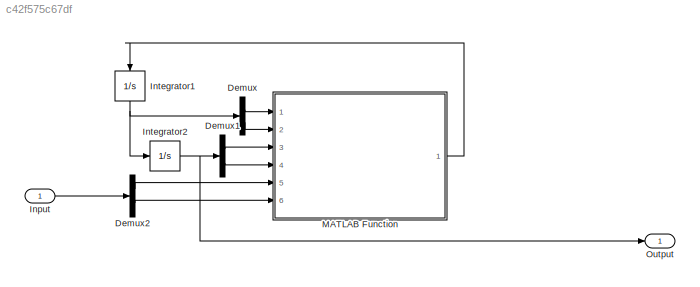
MODEL slx_c42f575c67df
KIND model
CONFIG AbsTol = auto
CONFIG EnableMultiTasking = off
CONFIG FixedStep = auto
CONFIG MaxStep = auto
CONFIG MinStep = auto
CONFIG RelTol = 1e-3
CONFIG SampleTimeConstraint = Unconstrained
CONFIG Solver = VariableStepAuto
CONFIG SolverName = VariableStepAuto
CONFIG StartTime = 0.0
CONFIG StopTime = 10.0
BLOCK [Demux] Demux
  DisplayOption = bar
  Outputs = 2
  Ports = [1, 2]
BLOCK [Demux] Demux1
  DisplayOption = bar
  Outputs = 2
  Ports = [1, 2]
BLOCK [Demux] Demux2
  DisplayOption = bar
  Outputs = 2
  Ports = [1, 2]
BLOCK [Inport] Input
  IconDisplay = Port number
BLOCK [Integrator] Integrator1
  InitialCondition = [0, 0]
  Ports = [1, 1]
BLOCK [Integrator] Integrator2
  InitialCondition = [pi/2, -pi/2]
  Ports = [1, 1]
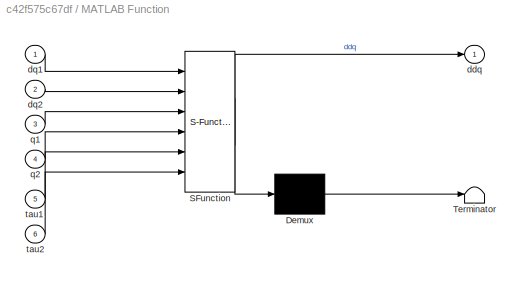
BLOCK [SubSystem] MATLAB Function
  ErrorFcn = Stateflow.Translate.translate
  PermitHierarchicalResolution = ExplicitOnly
  Ports = [6, 1]
  RequestExecContextInheritance = off
  SFBlockType = MATLAB Function
  TreatAsAtomicUnit = on
BLOCK [Demux] MATLAB Function/ Demux 
  Outputs = 1
  Ports = [1, 1]
BLOCK [S-Function] MATLAB Function/ SFunction 
  EnableBusSupport = on
  FunctionName = sf_sfun
  PortCounts = [6 2]
  Ports = [6, 2]
  SFcnIsStateOwnerBlock = off
  SFunctionDeploymentMode = off
  Tag = Stateflow S-Function 2
BLOCK [Terminator] MATLAB Function/ Terminator 
BLOCK [Outport] MATLAB Function/ddq
  IconDisplay = Port number
BLOCK [Inport] MATLAB Function/dq1
  IconDisplay = Port number
BLOCK [Inport] MATLAB Function/dq2
  IconDisplay = Port number
  Port = 2
BLOCK [Inport] MATLAB Function/q1
  IconDisplay = Port number
  Port = 3
BLOCK [Inport] MATLAB Function/q2
  IconDisplay = Port number
  Port = 4
BLOCK [Inport] MATLAB Function/tau1
  IconDisplay = Port number
  Port = 5
BLOCK [Inport] MATLAB Function/tau2
  IconDisplay = Port number
  Port = 6
BLOCK [Outport] Output
  IconDisplay = Port number
LINE Demux1:1 -> MATLAB Function:3
LINE Demux1:2 -> MATLAB Function:4
LINE Demux2:1 -> MATLAB Function:5
LINE Demux2:2 -> MATLAB Function:6
LINE Demux:1 -> MATLAB Function:1
LINE Demux:2 -> MATLAB Function:2
LINE Input:1 -> Demux2:1
NET Integrator1:1 -> Demux:1, Integrator2:1
NET Integrator2:1 -> Demux1:1, Output:1
LINE MATLAB Function:1 -> Integrator1:1
note: NET lines group one-source signal fan-out (src -> all destinations, sorted); 1:1 wires keep LINE
CHART MATLAB Function states=1 transitions=1
  STATE_LABEL 'eML_blk_kernel()'
  STATE_LABEL 'SCRIPT:\nfunction ddq = pendulum_dyn(dq1,dq2,q1,q2,tau1,tau2)\nt2 = cos(q1);\nt3 = cos(q2);\nt4 = sin(q2);\nt5 = q1+q2;\nt6 = dq1.^2;\nt10 = -tau2;\nt7 = t3+1.0;\nt8 = t3.^2;\nt9 = cos(t5);\nt11 = t2.*2.0e+1;\nt12 = t4.*t6;\nt13 = -t11;\nt14 = t9.*1.0e+1;\nt15 = t8-2.0;\nt16 = -t14;\nt17 = 1.0./t15;\nt18 = t10+t12+t14;\nddq = [-t17.*(t13+t16+tau1+dq2.*t4.*(dq1+dq2)+dq1.*dq2.*t4)-t7.*t17.*t18;t7.*t17.*(t13+t16+tau1+d...<+55ch>'
